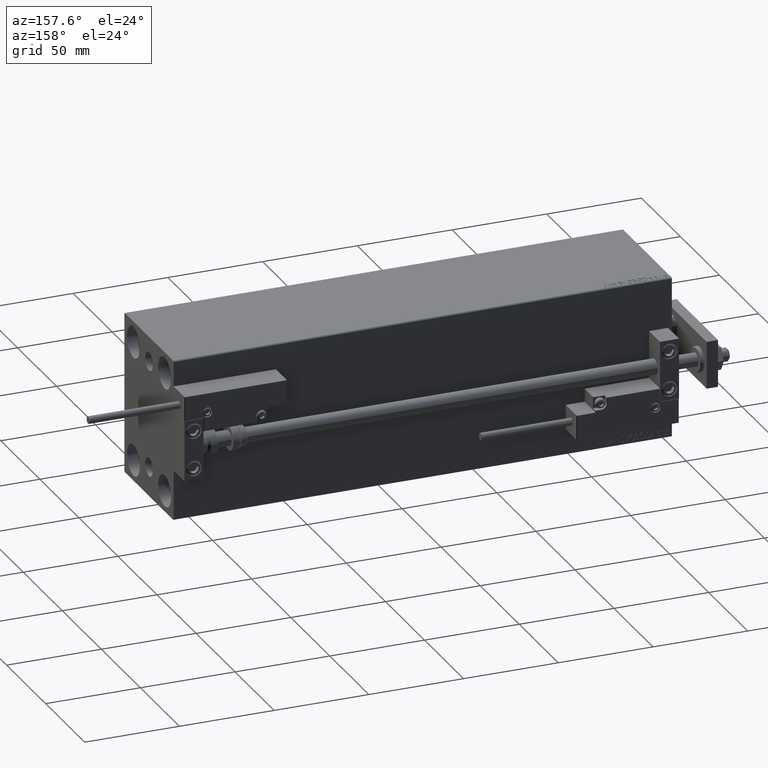
[diagram: clean part render]
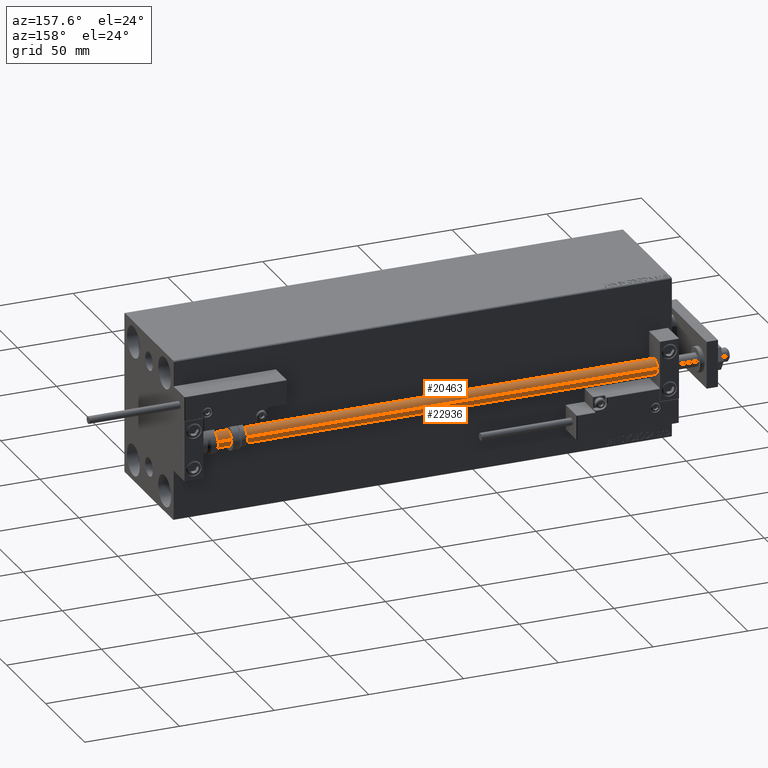
[diagram: same view with one multi-face feature highlighted, each face labeled with its STEP entity id]
A machine part, auxiliary view. The highlighted faces form ONE feature: a constant-radius fillet chain: 2 tangent blend faces with common blend radius 4 mm. The faces share edges in the B-rep.
Their STEP definitions:
[1] entity #20463 (Cylinder):
#281 = EDGE_CURVE ( 'NONE', #26504, #5681, #30486, .T. ) ;
#1219 = ORIENTED_EDGE ( 'NONE', *, *, #5425, .F. ) ;
#2302 = DIRECTION ( 'NONE',  ( -1.000000000000000000, 0.000000000000000000, 0.000000000000000000 ) ) ;
#3830 = EDGE_CURVE ( 'NONE', #42168, #5681, #28110, .T. ) ;
#4726 = CARTESIAN_POINT ( 'NONE',  ( 4.000000000000000000, 4.898587196589412829E-16, 263.0000000000000000 ) ) ;
#5425 = EDGE_CURVE ( 'NONE', #34278, #42168, #27297, .T. ) ;
#5681 = VERTEX_POINT ( 'NONE', #48439 ) ;
#5875 = FACE_OUTER_BOUND ( 'NONE', #8705, .T. ) ;
#6366 = CYLINDRICAL_SURFACE ( 'NONE', #26898, 4.000000000000000000 ) ;
#7019 = ORIENTED_EDGE ( 'NONE', *, *, #281, .T. ) ;
#7838 = AXIS2_PLACEMENT_3D ( 'NONE', #43869, #43118, #16012 ) ;
#7883 = CARTESIAN_POINT ( 'NONE',  ( -4.000000000000000000, 0.000000000000000000, 263.0000000000000000 ) ) ;
#8465 = CARTESIAN_POINT ( 'NONE',  ( 0.000000000000000000, 0.000000000000000000, 263.0000000000000000 ) ) ;
#8705 = EDGE_LOOP ( 'NONE', ( #1219, #27239, #7019, #31336 ) ) ;
#16012 = DIRECTION ( 'NONE',  ( 1.000000000000000000, 0.000000000000000000, 0.000000000000000000 ) ) ;
#20268 = DIRECTION ( 'NONE',  ( -0.000000000000000000, -0.000000000000000000, -1.000000000000000000 ) ) ;
#20463 = ADVANCED_FACE ( 'NONE', ( #5875 ), #6366, .T. ) ;
#21173 = CARTESIAN_POINT ( 'NONE',  ( 4.000000000000000000, 4.898587196589412829E-16, 263.0000000000000000 ) ) ;
#22945 = VECTOR ( 'NONE', #36642, 1000.000000000000000 ) ;
#23242 = AXIS2_PLACEMENT_3D ( 'NONE', #8465, #24136, #23642 ) ;
#23642 = DIRECTION ( 'NONE',  ( 1.000000000000000000, 0.000000000000000000, 0.000000000000000000 ) ) ;
#24136 = DIRECTION ( 'NONE',  ( 0.000000000000000000, 0.000000000000000000, 1.000000000000000000 ) ) ;
#24204 = LINE ( 'NONE', #4726, #22945 ) ;
#26504 = VERTEX_POINT ( 'NONE', #38616 ) ;
#26898 = AXIS2_PLACEMENT_3D ( 'NONE', #48642, #45098, #2302 ) ;
#27239 = ORIENTED_EDGE ( 'NONE', *, *, #44600, .T. ) ;
#27297 = CIRCLE ( 'NONE', #23242, 4.000000000000000000 ) ;
#28110 = LINE ( 'NONE', #7883, #39393 ) ;
#30416 = CARTESIAN_POINT ( 'NONE',  ( -4.000000000000000000, 0.000000000000000000, 263.0000000000000000 ) ) ;
#30486 = CIRCLE ( 'NONE', #7838, 4.000000000000000000 ) ;
#31336 = ORIENTED_EDGE ( 'NONE', *, *, #3830, .F. ) ;
#34278 = VERTEX_POINT ( 'NONE', #21173 ) ;
#36642 = DIRECTION ( 'NONE',  ( -0.000000000000000000, -0.000000000000000000, -1.000000000000000000 ) ) ;
#38616 = CARTESIAN_POINT ( 'NONE',  ( 4.000000000000000000, 4.898587196589412829E-16, 2.000000000000057288 ) ) ;
#39393 = VECTOR ( 'NONE', #20268, 1000.000000000000000 ) ;
#42168 = VERTEX_POINT ( 'NONE', #30416 ) ;
#43118 = DIRECTION ( 'NONE',  ( -0.000000000000000000, -0.000000000000000000, 1.000000000000000000 ) ) ;
#43869 = CARTESIAN_POINT ( 'NONE',  ( 0.000000000000000000, 0.000000000000000000, 2.000000000000057288 ) ) ;
#44600 = EDGE_CURVE ( 'NONE', #34278, #26504, #24204, .T. ) ;
#45098 = DIRECTION ( 'NONE',  ( -0.000000000000000000, -0.000000000000000000, -1.000000000000000000 ) ) ;
#48439 = CARTESIAN_POINT ( 'NONE',  ( -4.000000000000000000, 0.000000000000000000, 2.000000000000057288 ) ) ;
#48642 = CARTESIAN_POINT ( 'NONE',  ( 0.000000000000000000, 0.000000000000000000, 263.0000000000000000 ) ) ;
[2] entity #22936 (Cylinder):
#3830 = EDGE_CURVE ( 'NONE', #42168, #5681, #28110, .T. ) ;
#4726 = CARTESIAN_POINT ( 'NONE',  ( 4.000000000000000000, 4.898587196589412829E-16, 263.0000000000000000 ) ) ;
#5681 = VERTEX_POINT ( 'NONE', #48439 ) ;
#5730 = CIRCLE ( 'NONE', #35665, 4.000000000000000000 ) ;
#6231 = CYLINDRICAL_SURFACE ( 'NONE', #31012, 4.000000000000000000 ) ;
#7883 = CARTESIAN_POINT ( 'NONE',  ( -4.000000000000000000, 0.000000000000000000, 263.0000000000000000 ) ) ;
#9112 = ORIENTED_EDGE ( 'NONE', *, *, #44600, .F. ) ;
#13814 = DIRECTION ( 'NONE',  ( -0.000000000000000000, -0.000000000000000000, -1.000000000000000000 ) ) ;
#20268 = DIRECTION ( 'NONE',  ( -0.000000000000000000, -0.000000000000000000, -1.000000000000000000 ) ) ;
#20896 = CIRCLE ( 'NONE', #27366, 4.000000000000000000 ) ;
#20898 = FACE_OUTER_BOUND ( 'NONE', #37607, .T. ) ;
#21173 = CARTESIAN_POINT ( 'NONE',  ( 4.000000000000000000, 4.898587196589412829E-16, 263.0000000000000000 ) ) ;
#22936 = ADVANCED_FACE ( 'NONE', ( #20898 ), #6231, .T. ) ;
#22945 = VECTOR ( 'NONE', #36642, 1000.000000000000000 ) ;
#24204 = LINE ( 'NONE', #4726, #22945 ) ;
#24271 = CARTESIAN_POINT ( 'NONE',  ( 0.000000000000000000, 0.000000000000000000, 263.0000000000000000 ) ) ;
#26504 = VERTEX_POINT ( 'NONE', #38616 ) ;
#27366 = AXIS2_PLACEMENT_3D ( 'NONE', #37383, #33821, #40670 ) ;
#28110 = LINE ( 'NONE', #7883, #39393 ) ;
#29497 = CARTESIAN_POINT ( 'NONE',  ( 0.000000000000000000, 0.000000000000000000, 263.0000000000000000 ) ) ;
#30416 = CARTESIAN_POINT ( 'NONE',  ( -4.000000000000000000, 0.000000000000000000, 263.0000000000000000 ) ) ;
#31012 = AXIS2_PLACEMENT_3D ( 'NONE', #29497, #13814, #48252 ) ;
#31328 = ORIENTED_EDGE ( 'NONE', *, *, #31412, .T. ) ;
#31412 = EDGE_CURVE ( 'NONE', #5681, #26504, #20896, .T. ) ;
#32129 = DIRECTION ( 'NONE',  ( 0.000000000000000000, 0.000000000000000000, 1.000000000000000000 ) ) ;
#33821 = DIRECTION ( 'NONE',  ( -0.000000000000000000, -0.000000000000000000, 1.000000000000000000 ) ) ;
#34278 = VERTEX_POINT ( 'NONE', #21173 ) ;
#34704 = ORIENTED_EDGE ( 'NONE', *, *, #3830, .T. ) ;
#35665 = AXIS2_PLACEMENT_3D ( 'NONE', #24271, #32129, #39739 ) ;
#36642 = DIRECTION ( 'NONE',  ( -0.000000000000000000, -0.000000000000000000, -1.000000000000000000 ) ) ;
#37231 = EDGE_CURVE ( 'NONE', #42168, #34278, #5730, .T. ) ;
#37383 = CARTESIAN_POINT ( 'NONE',  ( 0.000000000000000000, 0.000000000000000000, 2.000000000000057288 ) ) ;
#37607 = EDGE_LOOP ( 'NONE', ( #9112, #48501, #34704, #31328 ) ) ;
#38616 = CARTESIAN_POINT ( 'NONE',  ( 4.000000000000000000, 4.898587196589412829E-16, 2.000000000000057288 ) ) ;
#39393 = VECTOR ( 'NONE', #20268, 1000.000000000000000 ) ;
#39739 = DIRECTION ( 'NONE',  ( 1.000000000000000000, 0.000000000000000000, 0.000000000000000000 ) ) ;
#40670 = DIRECTION ( 'NONE',  ( 1.000000000000000000, 0.000000000000000000, 0.000000000000000000 ) ) ;
#42168 = VERTEX_POINT ( 'NONE', #30416 ) ;
#44600 = EDGE_CURVE ( 'NONE', #34278, #26504, #24204, .T. ) ;
#48252 = DIRECTION ( 'NONE',  ( -1.000000000000000000, 0.000000000000000000, 0.000000000000000000 ) ) ;
#48439 = CARTESIAN_POINT ( 'NONE',  ( -4.000000000000000000, 0.000000000000000000, 2.000000000000057288 ) ) ;
#48501 = ORIENTED_EDGE ( 'NONE', *, *, #37231, .F. ) ;